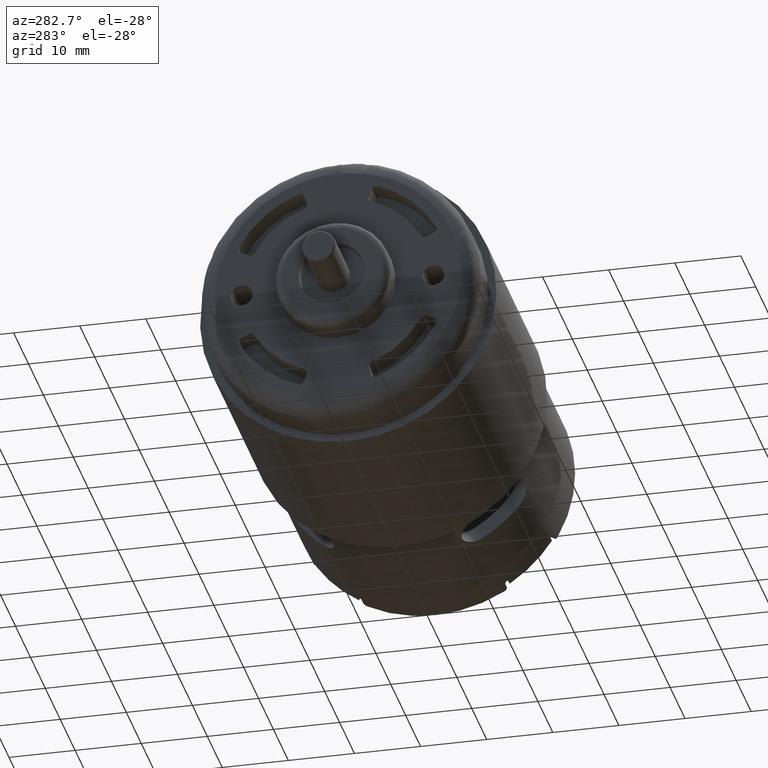
[diagram: clean part render]
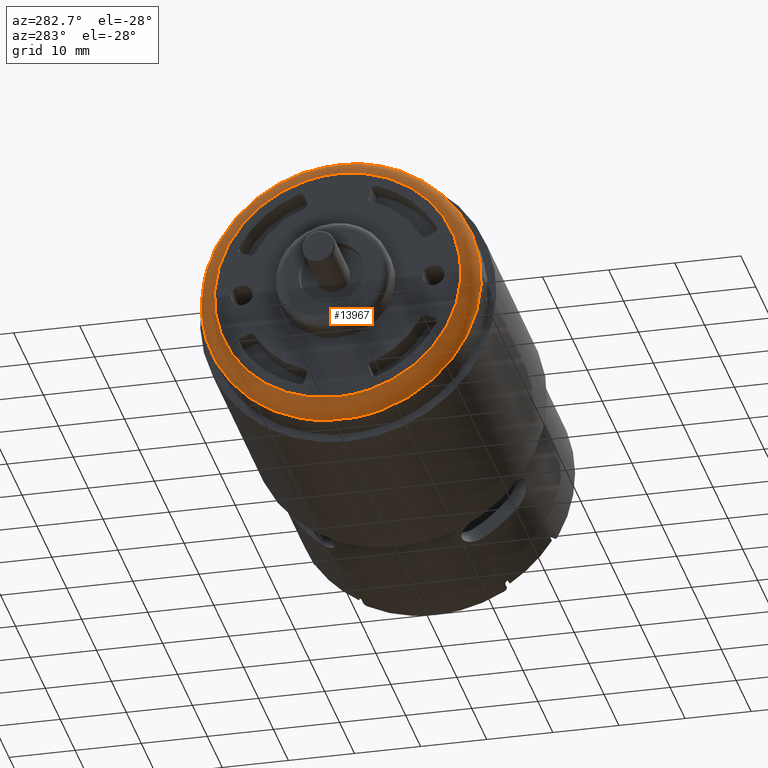
[diagram: same view with one face highlighted and labeled with its STEP entity id]
A machine part, auxiliary view. The second image highlights one B-rep face of the part: STEP entity #13967.
In plain terms, the highlighted face is a freeform B-spline surface patch.
Its self-contained STEP definition (entity closure, byte-faithful):
#368 = VERTEX_POINT ( 'NONE', #1242 ) ;
#1212 = CARTESIAN_POINT ( 'NONE',  ( 0.04076905141467471183, 0.0000000000000000000, 0.8326771653543306728 ) ) ;
#1242 = CARTESIAN_POINT ( 'NONE',  ( 0.09842519685039370636, 0.0000000000000000000, 0.8326771653543306728 ) ) ;
#1277 = CARTESIAN_POINT ( 'NONE',  ( 0.0000000000000000000, 1.468503937007874072, 0.7342519685039370358 ) ) ;
#1720 = DIRECTION ( 'NONE',  ( 1.000000000000000000, 0.0000000000000000000, 0.0000000000000000000 ) ) ;
#2436 = CARTESIAN_POINT ( 'NONE',  ( 0.0000000000000000000, 1.468503937007873850, 0.7342519685039369248 ) ) ;
#2500 = CARTESIAN_POINT ( 'NONE',  ( 0.09842519685039370636, 0.0000000000000000000, -0.8326771653543306728 ) ) ;
#2661 = CARTESIAN_POINT ( 'NONE',  ( 0.0000000000000000000, 8.127043931640201371E-17, 0.7342519685039370358 ) ) ;
#2689 = CARTESIAN_POINT ( 'NONE',  ( 0.04076905141467470489, -1.665354330708661790, -0.8326771653543308949 ) ) ;
#2763 = CARTESIAN_POINT ( 'NONE',  ( 0.0000000000000000000, -1.468503937007874072, 0.7342519685039370358 ) ) ;
#2948 = ORIENTED_EDGE ( 'NONE', *, *, #15844, .T. ) ;
#2991 = ORIENTED_EDGE ( 'NONE', *, *, #8811, .T. ) ;
#4094 = CARTESIAN_POINT ( 'NONE',  ( 0.09842519685039367860, 1.665354330708661124, -0.8326771653543305618 ) ) ;
#4161 = CARTESIAN_POINT ( 'NONE',  ( 3.530420697951376930E-18, 0.0000000000000000000, -0.7919081139396558777 ) ) ;
#4221 = CARTESIAN_POINT ( 'NONE',  ( 0.0000000000000000000, 0.0000000000000000000, -0.7342519685039370358 ) ) ;
#4308 = EDGE_LOOP ( 'NONE', ( #2948, #2991 ) ) ;
#4379 = VERTEX_POINT ( 'NONE', #10773 ) ;
#5194 = VERTEX_POINT ( 'NONE', #7543 ) ;
#5279 =( BOUNDED_SURFACE ( )  B_SPLINE_SURFACE ( 3, 3, ( 
 ( #2500, #4094, #14098, #5516, #15542, #6983, #17010 ),
 ( #8407, #18470, #9832, #1212, #11281, #2689, #12723 ),
 ( #4161, #14169, #5585, #15604, #7054, #17079, #8465 ),
 ( #18542, #9897, #1277, #11337, #2763, #12797, #4221 ) ),
 .UNSPECIFIED., .F., .T., .F. ) 
 B_SPLINE_SURFACE_WITH_KNOTS ( ( 4, 4 ),
 ( 4, 3, 4 ),
 ( 0.0000000000000000000, 1.000000000000000000 ),
 ( 0.0000000000000000000, 0.5000000000000000000, 1.000000000000000000 ),
 .UNSPECIFIED. ) 
 GEOMETRIC_REPRESENTATION_ITEM ( )  RATIONAL_B_SPLINE_SURFACE ( (
 ( 1.000000000000000000, 0.3333333333333333148, 0.3333333333333333148, 1.000000000000000000, 0.3333333333333333148, 0.3333333333333333148, 1.000000000000000000),
 ( 0.8047378541243649375, 0.2682459513747882940, 0.2682459513747882940, 0.8047378541243649375, 0.2682459513747882940, 0.2682459513747882940, 0.8047378541243649375),
 ( 0.8047378541243649375, 0.2682459513747882940, 0.2682459513747882940, 0.8047378541243649375, 0.2682459513747882940, 0.2682459513747882940, 0.8047378541243649375),
 ( 1.000000000000000000, 0.3333333333333333148, 0.3333333333333333148, 1.000000000000000000, 0.3333333333333333148, 0.3333333333333333148, 1.000000000000000000) ) ) 
 REPRESENTATION_ITEM ( '' )  SURFACE ( )  );
#5516 = CARTESIAN_POINT ( 'NONE',  ( 0.09842519685039370636, 0.0000000000000000000, 0.8326771653543306728 ) ) ;
#5556 = CARTESIAN_POINT ( 'NONE',  ( 0.0000000000000000000, -1.468503937007873850, -0.7342519685039370358 ) ) ;
#5585 = CARTESIAN_POINT ( 'NONE',  ( 3.530420697951376930E-18, 1.583816227879311977, 0.7919081139396559887 ) ) ;
#5961 = FACE_OUTER_BOUND ( 'NONE', #4308, .T. ) ;
#6983 = CARTESIAN_POINT ( 'NONE',  ( 0.09842519685039367860, -1.665354330708661124, -0.8326771653543305618 ) ) ;
#7054 = CARTESIAN_POINT ( 'NONE',  ( 3.530420697951376930E-18, -1.583816227879311977, 0.7919081139396559887 ) ) ;
#7147 = ORIENTED_EDGE ( 'NONE', *, *, #16052, .F. ) ;
#7478 =( BOUNDED_CURVE ( )  B_SPLINE_CURVE ( 3, ( #2661, #11256, #5556, #15578 ),
 .UNSPECIFIED., .F., .F. ) 
 B_SPLINE_CURVE_WITH_KNOTS ( ( 4, 4 ),
 ( 0.0000000000000000000, 1.000000000000000000 ),
 .UNSPECIFIED. ) 
 CURVE ( )  GEOMETRIC_REPRESENTATION_ITEM ( )  RATIONAL_B_SPLINE_CURVE ( ( 1.000000000000000000, 0.3333333333333333703, 0.3333333333333333703, 1.000000000000000000 ) ) 
 REPRESENTATION_ITEM ( '' )  );
#7543 = CARTESIAN_POINT ( 'NONE',  ( 0.0000000000000000000, 0.0000000000000000000, -0.7342519685039370358 ) ) ;
#8156 = CARTESIAN_POINT ( 'NONE',  ( 0.0000000000000000000, 1.468503937007873850, -0.7342519685039370358 ) ) ;
#8407 = CARTESIAN_POINT ( 'NONE',  ( 0.04076905141467471183, 0.0000000000000000000, -0.8326771653543306728 ) ) ;
#8465 = CARTESIAN_POINT ( 'NONE',  ( 3.530420697951376930E-18, 0.0000000000000000000, -0.7919081139396558777 ) ) ;
#8811 = EDGE_CURVE ( 'NONE', #4379, #5194, #7478, .T. ) ;
#9832 = CARTESIAN_POINT ( 'NONE',  ( 0.04076905141467470489, 1.665354330708661790, 0.8326771653543308949 ) ) ;
#9897 = CARTESIAN_POINT ( 'NONE',  ( 0.0000000000000000000, 1.468503937007874072, -0.7342519685039370358 ) ) ;
#10337 = CARTESIAN_POINT ( 'NONE',  ( 0.09842519685039370636, 0.0000000000000000000, 0.0000000000000000000 ) ) ;
#10773 = CARTESIAN_POINT ( 'NONE',  ( 0.0000000000000000000, 8.127043931640201371E-17, 0.7342519685039370358 ) ) ;
#11256 = CARTESIAN_POINT ( 'NONE',  ( 0.0000000000000000000, -1.468503937007873850, 0.7342519685039370358 ) ) ;
#11281 = CARTESIAN_POINT ( 'NONE',  ( 0.04076905141467470489, -1.665354330708661790, 0.8326771653543308949 ) ) ;
#11337 = CARTESIAN_POINT ( 'NONE',  ( 0.0000000000000000000, 0.0000000000000000000, 0.7342519685039370358 ) ) ;
#11788 = DIRECTION ( 'NONE',  ( 0.0000000000000000000, 0.0000000000000000000, 1.000000000000000000 ) ) ;
#11942 =( BOUNDED_CURVE ( )  B_SPLINE_CURVE ( 3, ( #18219, #8156, #2436, #12473 ),
 .UNSPECIFIED., .F., .T. ) 
 B_SPLINE_CURVE_WITH_KNOTS ( ( 4, 4 ),
 ( 0.0000000000000000000, 1.000000000000000000 ),
 .UNSPECIFIED. ) 
 CURVE ( )  GEOMETRIC_REPRESENTATION_ITEM ( )  RATIONAL_B_SPLINE_CURVE ( ( 1.000000000000000000, 0.3333333333333333703, 0.3333333333333333703, 1.000000000000000000 ) ) 
 REPRESENTATION_ITEM ( '' )  );
#12051 = EDGE_LOOP ( 'NONE', ( #7147 ) ) ;
#12473 = CARTESIAN_POINT ( 'NONE',  ( 0.0000000000000000000, 8.127043931640201371E-17, 0.7342519685039370358 ) ) ;
#12667 = FACE_OUTER_BOUND ( 'NONE', #12051, .T. ) ;
#12723 = CARTESIAN_POINT ( 'NONE',  ( 0.04076905141467471183, 0.0000000000000000000, -0.8326771653543306728 ) ) ;
#12797 = CARTESIAN_POINT ( 'NONE',  ( 0.0000000000000000000, -1.468503937007874072, -0.7342519685039370358 ) ) ;
#13864 = CIRCLE ( 'NONE', #17872, 0.8326771653543306728 ) ;
#13967 = ADVANCED_FACE ( 'NONE', ( #12667, #5961 ), #5279, .T. ) ;
#14098 = CARTESIAN_POINT ( 'NONE',  ( 0.09842519685039367860, 1.665354330708661124, 0.8326771653543305618 ) ) ;
#14169 = CARTESIAN_POINT ( 'NONE',  ( 3.530420697951376930E-18, 1.583816227879311977, -0.7919081139396559887 ) ) ;
#15542 = CARTESIAN_POINT ( 'NONE',  ( 0.09842519685039367860, -1.665354330708661124, 0.8326771653543305618 ) ) ;
#15578 = CARTESIAN_POINT ( 'NONE',  ( 0.0000000000000000000, 0.0000000000000000000, -0.7342519685039370358 ) ) ;
#15604 = CARTESIAN_POINT ( 'NONE',  ( 3.530420697951376930E-18, 0.0000000000000000000, 0.7919081139396558777 ) ) ;
#15844 = EDGE_CURVE ( 'NONE', #5194, #4379, #11942, .T. ) ;
#16052 = EDGE_CURVE ( 'NONE', #368, #368, #13864, .T. ) ;
#17010 = CARTESIAN_POINT ( 'NONE',  ( 0.09842519685039370636, 0.0000000000000000000, -0.8326771653543306728 ) ) ;
#17079 = CARTESIAN_POINT ( 'NONE',  ( 3.530420697951376930E-18, -1.583816227879311977, -0.7919081139396559887 ) ) ;
#17872 = AXIS2_PLACEMENT_3D ( 'NONE', #10337, #1720, #11788 ) ;
#18219 = CARTESIAN_POINT ( 'NONE',  ( 0.0000000000000000000, 0.0000000000000000000, -0.7342519685039370358 ) ) ;
#18470 = CARTESIAN_POINT ( 'NONE',  ( 0.04076905141467470489, 1.665354330708661790, -0.8326771653543308949 ) ) ;
#18542 = CARTESIAN_POINT ( 'NONE',  ( 0.0000000000000000000, 0.0000000000000000000, -0.7342519685039370358 ) ) ;